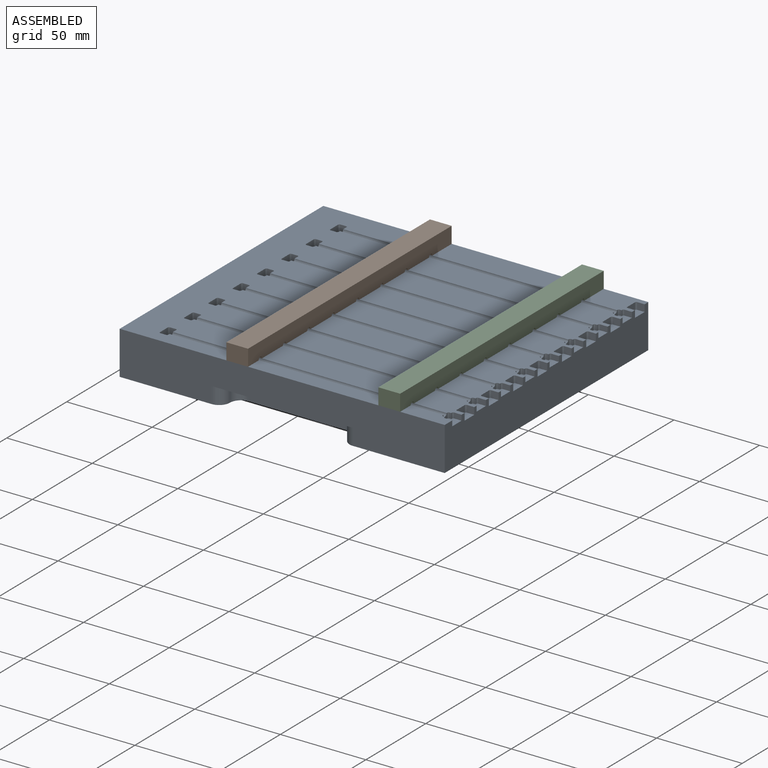
[diagram: assembled view]
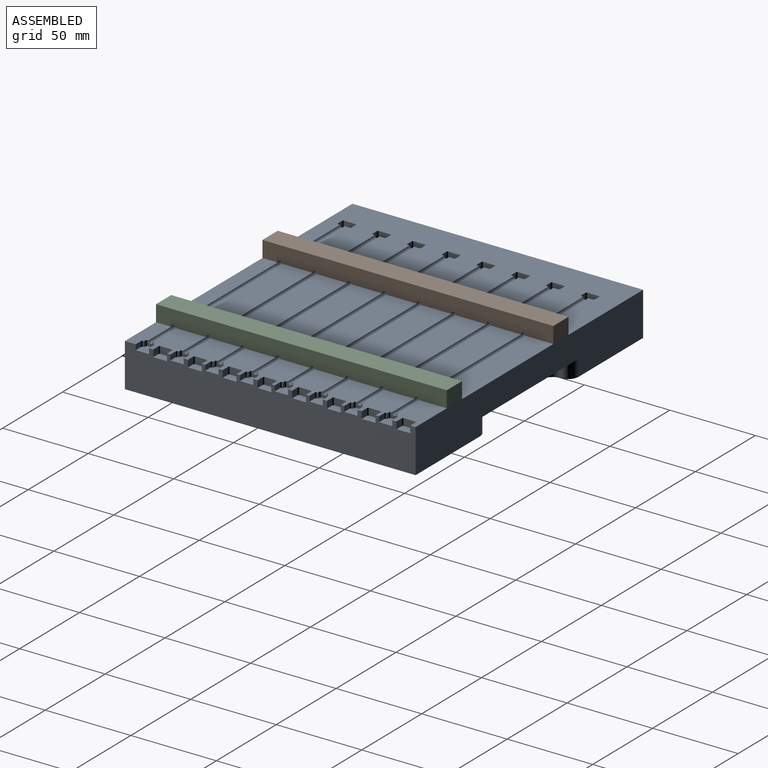
[diagram: assembled view, second angle]
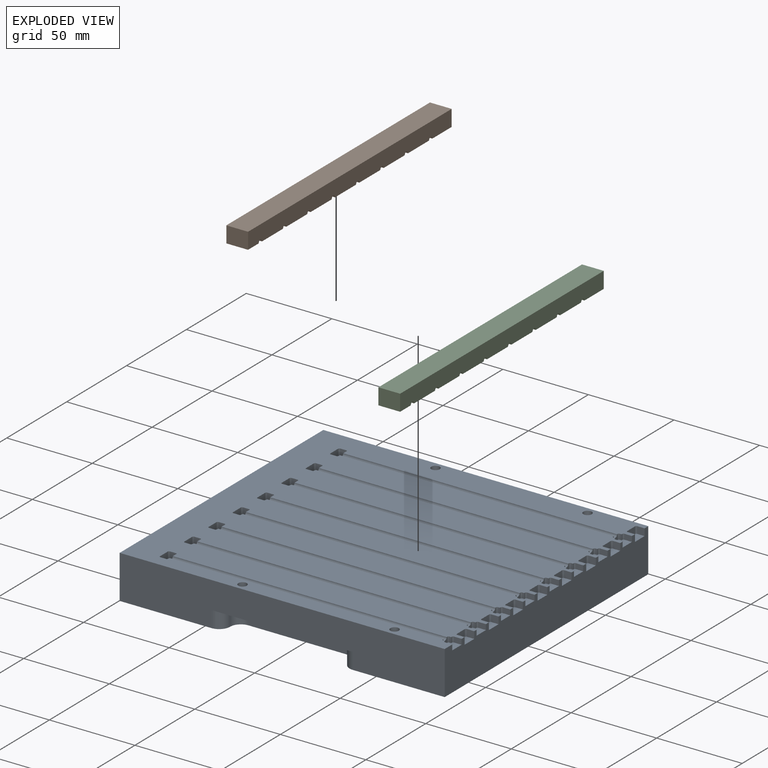
[diagram: exploded view]
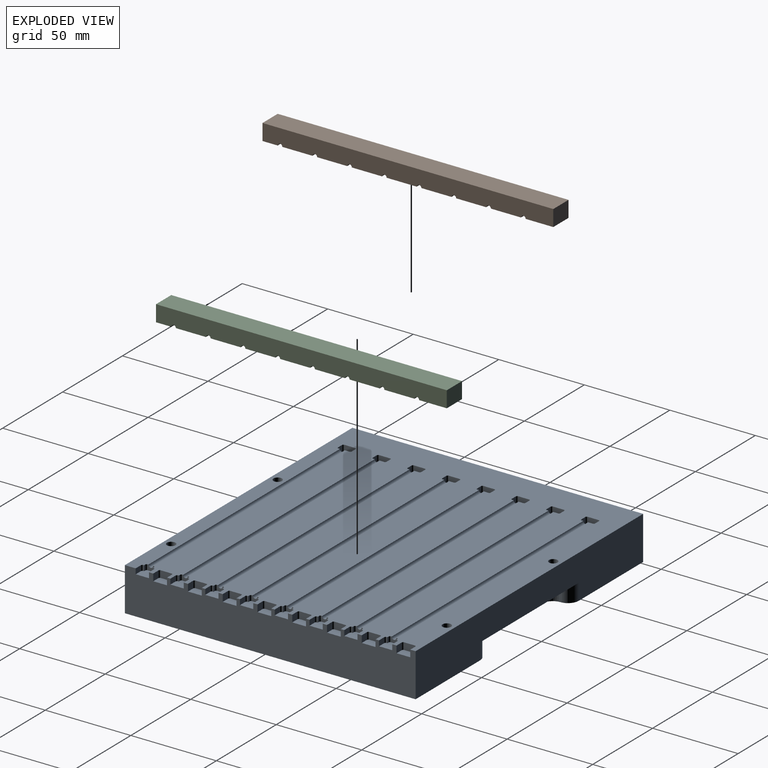
[diagram: exploded view, second angle]
ASSEMBLY  parts=3 mates=2
PART A: 258 faces, bbox 190x25.4x170 mm
  f0: plane 190x25.4mm, normal (0,0,1), area 4039.7mm2, adj f1,f2,f3,f12,f177,f180,f182
  f1: plane 190x170mm, normal (0,1,0), area 30412.7mm2, adj f0,f3,f12,f13,f150,f152,f154,f156
  f2: plane 190x170mm, normal (0,-1,0), area 27708.7mm2, adj f0,f3,f4,f5,f6,f7,f8,f9
  f3: plane 170x25.4mm, normal (1,0,0), area 3862.3mm2, adj f0,f1,f2,f13,f14,f15,f20,f26
  f4: plane 3.63x3.12mm, normal (1,0,0), area 8.4mm2, adj f2,f36,f165,f171,f172
  f5: plane 3.63x3.12mm, normal (1,0,0), area 8.4mm2, adj f2,f43,f164,f222,f225
  f6: plane 3.63x3.12mm, normal (1,0,0), area 8.4mm2, adj f2,f50,f163,f226,f229
  f7: plane 3.63x3.12mm, normal (1,0,0), area 8.4mm2, adj f2,f57,f162,f230,f233
  f8: plane 3.63x3.12mm, normal (1,0,0), area 8.4mm2, adj f2,f64,f161,f234,f237
  f9: plane 3.63x3.12mm, normal (1,0,0), area 8.4mm2, adj f2,f71,f160,f238,f241
  f10: plane 3.63x3.12mm, normal (1,0,0), area 8.4mm2, adj f2,f78,f159,f242,f245
  f11: plane 3.63x3.12mm, normal (1,0,0), area 8.4mm2, adj f2,f20,f158,f217,f218
  f12: plane 170x25.4mm, normal (-1,0,0), area 4318mm2, adj f0,f1,f2,f13
  f13: plane 190x25.4mm, normal (0,0,-1), area 4039.7mm2, adj f1,f2,f3,f12,f179,f184,f187
  f14: plane 4.38x3.12mm, normal (0,0,1), area 13.7mm2, adj f2,f3,f20,f219
  f15: plane 4.38x3.12mm, normal (0,0,-1), area 13.7mm2, adj f2,f3,f20,f216
  f16: plane 3.12x0.48mm, normal (1,0,0), area 1.5mm2, adj f2,f17,f20,f216
  f17: plane 3.12x1.04mm, normal (0,0,-1), area 3.2mm2, adj f2,f16,f20,f217
  f18: plane 3.12x1.04mm, normal (0,0,1), area 3.2mm2, adj f2,f19,f20,f218
  f19: plane 3.12x0.48mm, normal (1,0,0), area 1.5mm2, adj f2,f18,f20,f219
  f20: plane 7.76x7mm, normal (0,-1,0), area 49.1mm2, adj f3,f11,f14,f15,f16,f17,f18,f19
  f21: plane 6.46x3.81mm, normal (-1,0,0), area 21.7mm2, adj f2,f25,f158,f188,f191
  f22: plane 3.81x3.38mm, normal (0,0,-1), area 12.9mm2, adj f2,f25,f188,f189
  f23: plane 6.46x3.81mm, normal (1,0,0), area 24.6mm2, adj f2,f25,f189,f190
  f24: plane 3.81x3.38mm, normal (0,0,1), area 12.9mm2, adj f2,f25,f190,f191
  f25: plane 8.05x4.97mm, normal (0,-1,0), area 39.4mm2, adj f21,f22,f23,f24,f188,f189,f190,f191
  f26: plane 4.29x4.06mm, normal (0,0,1), area 17.4mm2, adj f2,f3,f29,f221
  f27: plane 4.29x4.06mm, normal (0,0,-1), area 17.4mm2, adj f2,f3,f29,f220
  f28: plane 6.46x4.06mm, normal (1,0,0), area 26.3mm2, adj f2,f29,f220,f221
  f29: plane 8.05x5.08mm, normal (0,-1,0), area 40.6mm2, adj f3,f26,f27,f28,f220,f221
  f30: plane 3.12x1.04mm, normal (0,0,1), area 3.2mm2, adj f2,f31,f36,f172
  f31: plane 3.12x0.48mm, normal (1,0,0), area 1.5mm2, adj f2,f30,f36,f173
  f32: plane 4.38x3.12mm, normal (0,0,1), area 13.7mm2, adj f2,f3,f36,f173
  f33: plane 4.38x3.12mm, normal (0,0,-1), area 13.7mm2, adj f2,f3,f36,f170
  f34: plane 3.12x0.48mm, normal (1,0,0), area 1.5mm2, adj f2,f35,f36,f170
  f35: plane 3.12x1.04mm, normal (0,0,-1), area 3.2mm2, adj f2,f34,f36,f171
  f36: plane 7.76x7mm, normal (0,-1,0), area 49.1mm2, adj f3,f4,f30,f31,f32,f33,f34,f35
  f37: plane 3.12x1.04mm, normal (0,0,1), area 3.2mm2, adj f2,f38,f43,f225
  f38: plane 3.12x0.48mm, normal (1,0,0), area 1.5mm2, adj f2,f37,f43,f224
  f39: plane 4.38x3.12mm, normal (0,0,1), area 13.7mm2, adj f2,f3,f43,f224
  f40: plane 4.38x3.12mm, normal (0,0,-1), area 13.7mm2, adj f2,f3,f43,f223
  f41: plane 3.12x0.48mm, normal (1,0,0), area 1.5mm2, adj f2,f42,f43,f223
  f42: plane 3.12x1.04mm, normal (0,0,-1), area 3.2mm2, adj f2,f41,f43,f222
  f43: plane 7.76x7mm, normal (0,-1,0), area 49.1mm2, adj f3,f5,f37,f38,f39,f40,f41,f42
  f44: plane 3.12x1.04mm, normal (0,0,1), area 3.2mm2, adj f2,f45,f50,f229
  f45: plane 3.12x0.48mm, normal (1,0,0), area 1.5mm2, adj f2,f44,f50,f228
  f46: plane 4.38x3.12mm, normal (0,0,1), area 13.7mm2, adj f2,f3,f50,f228
  f47: plane 4.38x3.12mm, normal (0,0,-1), area 13.7mm2, adj f2,f3,f50,f227
  f48: plane 3.12x0.48mm, normal (1,0,0), area 1.5mm2, adj f2,f49,f50,f227
  f49: plane 3.12x1.04mm, normal (0,0,-1), area 3.2mm2, adj f2,f48,f50,f226
  f50: plane 7.76x7mm, normal (0,-1,0), area 49.1mm2, adj f3,f6,f44,f45,f46,f47,f48,f49
  f51: plane 3.12x1.04mm, normal (0,0,1), area 3.2mm2, adj f2,f52,f57,f233
  f52: plane 3.12x0.48mm, normal (1,0,0), area 1.5mm2, adj f2,f51,f57,f232
  f53: plane 4.38x3.12mm, normal (0,0,1), area 13.7mm2, adj f2,f3,f57,f232
  f54: plane 4.38x3.12mm, normal (0,0,-1), area 13.7mm2, adj f2,f3,f57,f231
  f55: plane 3.12x0.48mm, normal (1,0,0), area 1.5mm2, adj f2,f56,f57,f231
  f56: plane 3.12x1.04mm, normal (0,0,-1), area 3.2mm2, adj f2,f55,f57,f230
  f57: plane 7.76x7mm, normal (0,-1,0), area 49.1mm2, adj f3,f7,f51,f52,f53,f54,f55,f56
  f58: plane 3.12x1.04mm, normal (0,0,1), area 3.2mm2, adj f2,f59,f64,f237
  f59: plane 3.12x0.48mm, normal (1,0,0), area 1.5mm2, adj f2,f58,f64,f236
  f60: plane 4.38x3.12mm, normal (0,0,1), area 13.7mm2, adj f2,f3,f64,f236
  f61: plane 4.38x3.12mm, normal (0,0,-1), area 13.7mm2, adj f2,f3,f64,f235
  f62: plane 3.12x0.48mm, normal (1,0,0), area 1.5mm2, adj f2,f63,f64,f235
  f63: plane 3.12x1.04mm, normal (0,0,-1), area 3.2mm2, adj f2,f62,f64,f234
  f64: plane 7.76x7mm, normal (0,-1,0), area 49.1mm2, adj f3,f8,f58,f59,f60,f61,f62,f63
  f65: plane 3.12x1.04mm, normal (0,0,1), area 3.2mm2, adj f2,f66,f71,f238
  f66: plane 3.12x0.48mm, normal (1,0,0), area 1.5mm2, adj f2,f65,f71,f239
  f67: plane 4.38x3.12mm, normal (0,0,1), area 13.7mm2, adj f2,f3,f71,f239
  f68: plane 4.38x3.12mm, normal (0,0,-1), area 13.7mm2, adj f2,f3,f71,f240
  f69: plane 3.12x0.48mm, normal (1,0,0), area 1.5mm2, adj f2,f70,f71,f240
  f70: plane 3.12x1.04mm, normal (0,0,-1), area 3.2mm2, adj f2,f69,f71,f241
  f71: plane 7.76x7mm, normal (0,-1,0), area 49.1mm2, adj f3,f9,f65,f66,f67,f68,f69,f70
  f72: plane 3.12x1.04mm, normal (0,0,1), area 3.2mm2, adj f2,f73,f78,f245
  f73: plane 3.12x0.48mm, normal (1,0,0), area 1.5mm2, adj f2,f72,f78,f244
  f74: plane 4.38x3.12mm, normal (0,0,1), area 13.7mm2, adj f2,f3,f78,f244
  f75: plane 4.38x3.12mm, normal (0,0,-1), area 13.7mm2, adj f2,f3,f78,f243
  f76: plane 3.12x0.48mm, normal (1,0,0), area 1.5mm2, adj f2,f77,f78,f243
  f77: plane 3.12x1.04mm, normal (0,0,-1), area 3.2mm2, adj f2,f76,f78,f242
  f78: plane 7.76x7mm, normal (0,-1,0), area 49.1mm2, adj f3,f10,f72,f73,f74,f75,f76,f77
  f79: plane 6.46x3.81mm, normal (-1,0,0), area 21.7mm2, adj f2,f83,f165,f168,f169
  f80: plane 3.81x3.38mm, normal (0,0,-1), area 12.9mm2, adj f2,f83,f166,f169
  f81: plane 6.46x3.81mm, normal (1,0,0), area 24.6mm2, adj f2,f83,f166,f167
  f82: plane 3.81x3.38mm, normal (0,0,1), area 12.9mm2, adj f2,f83,f167,f168
  f83: plane 8.05x4.97mm, normal (0,-1,0), area 39.4mm2, adj f79,f80,f81,f82,f166,f167,f168,f169
  f84: plane 6.46x3.81mm, normal (-1,0,0), area 21.7mm2, adj f2,f88,f164,f192,f195
  f85: plane 3.81x3.38mm, normal (0,0,-1), area 12.9mm2, adj f2,f88,f194,f195
  f86: plane 6.46x3.81mm, normal (1,0,0), area 24.6mm2, adj f2,f88,f193,f194
  f87: plane 3.81x3.38mm, normal (0,0,1), area 12.9mm2, adj f2,f88,f192,f193
  f88: plane 8.05x4.97mm, normal (0,-1,0), area 39.4mm2, adj f84,f85,f86,f87,f192,f193,f194,f195
  f89: plane 6.46x3.81mm, normal (-1,0,0), area 21.7mm2, adj f2,f93,f163,f196,f199
  f90: plane 3.81x3.38mm, normal (0,0,-1), area 12.9mm2, adj f2,f93,f198,f199
  f91: plane 6.46x3.81mm, normal (1,0,0), area 24.6mm2, adj f2,f93,f197,f198
  f92: plane 3.81x3.38mm, normal (0,0,1), area 12.9mm2, adj f2,f93,f196,f197
  f93: plane 8.05x4.97mm, normal (0,-1,0), area 39.4mm2, adj f89,f90,f91,f92,f196,f197,f198,f199
  f94: plane 6.46x3.81mm, normal (-1,0,0), area 21.7mm2, adj f2,f98,f162,f200,f203
  f95: plane 3.81x3.38mm, normal (0,0,-1), area 12.9mm2, adj f2,f98,f202,f203
  f96: plane 6.46x3.81mm, normal (1,0,0), area 24.6mm2, adj f2,f98,f201,f202
  f97: plane 3.81x3.38mm, normal (0,0,1), area 12.9mm2, adj f2,f98,f200,f201
  f98: plane 8.05x4.97mm, normal (0,-1,0), area 39.4mm2, adj f94,f95,f96,f97,f200,f201,f202,f203
  f99: plane 6.46x3.81mm, normal (-1,0,0), area 21.7mm2, adj f2,f103,f161,f204,f207
  f100: plane 3.81x3.38mm, normal (0,0,-1), area 12.9mm2, adj f2,f103,f206,f207
  f101: plane 6.46x3.81mm, normal (1,0,0), area 24.6mm2, adj f2,f103,f205,f206
  f102: plane 3.81x3.38mm, normal (0,0,1), area 12.9mm2, adj f2,f103,f204,f205
  f103: plane 8.05x4.97mm, normal (0,-1,0), area 39.4mm2, adj f99,f100,f101,f102,f204,f205,f206,f207
  f104: plane 6.46x3.81mm, normal (-1,0,0), area 21.7mm2, adj f2,f108,f160,f208,f211
  f105: plane 3.81x3.38mm, normal (0,0,-1), area 12.9mm2, adj f2,f108,f208,f209
  f106: plane 6.46x3.81mm, normal (1,0,0), area 24.6mm2, adj f2,f108,f209,f210
  f107: plane 3.81x3.38mm, normal (0,0,1), area 12.9mm2, adj f2,f108,f210,f211
  f108: plane 8.05x4.97mm, normal (0,-1,0), area 39.4mm2, adj f104,f105,f106,f107,f208,f209,f210,f211
  f109: plane 6.46x3.81mm, normal (-1,0,0), area 21.7mm2, adj f2,f113,f159,f212,f215
  f110: plane 3.81x3.38mm, normal (0,0,-1), area 12.9mm2, adj f2,f113,f214,f215
  f111: plane 6.46x3.81mm, normal (1,0,0), area 24.6mm2, adj f2,f113,f213,f214
  f112: plane 3.81x3.38mm, normal (0,0,1), area 12.9mm2, adj f2,f113,f212,f213
  f113: plane 8.05x4.97mm, normal (0,-1,0), area 39.4mm2, adj f109,f110,f111,f112,f212,f213,f214,f215
  f114: plane 4.29x4.06mm, normal (0,0,1), area 17.4mm2, adj f2,f3,f117,f174
  f115: plane 4.29x4.06mm, normal (0,0,-1), area 17.4mm2, adj f2,f3,f117,f175
  f116: plane 6.46x4.06mm, normal (1,0,0), area 26.3mm2, adj f2,f117,f174,f175
  f117: plane 8.05x5.08mm, normal (0,-1,0), area 40.6mm2, adj f3,f114,f115,f116,f174,f175
  f118: plane 4.29x4.06mm, normal (0,0,1), area 17.4mm2, adj f2,f3,f121,f246
  f119: plane 4.29x4.06mm, normal (0,0,-1), area 17.4mm2, adj f2,f3,f121,f247
  f120: plane 6.46x4.06mm, normal (1,0,0), area 26.3mm2, adj f2,f121,f246,f247
  f121: plane 8.05x5.08mm, normal (0,-1,0), area 40.6mm2, adj f3,f118,f119,f120,f246,f247
  f122: plane 4.29x4.06mm, normal (0,0,1), area 17.4mm2, adj f2,f3,f125,f248
  f123: plane 4.29x4.06mm, normal (0,0,-1), area 17.4mm2, adj f2,f3,f125,f249
  f124: plane 6.46x4.06mm, normal (1,0,0), area 26.3mm2, adj f2,f125,f248,f249
  f125: plane 8.05x5.08mm, normal (0,-1,0), area 40.6mm2, adj f3,f122,f123,f124,f248,f249
  f126: plane 4.29x4.06mm, normal (0,0,1), area 17.4mm2, adj f2,f3,f129,f250
  f127: plane 4.29x4.06mm, normal (0,0,-1), area 17.4mm2, adj f2,f3,f129,f251
  f128: plane 6.46x4.06mm, normal (1,0,0), area 26.3mm2, adj f2,f129,f250,f251
  f129: plane 8.05x5.08mm, normal (0,-1,0), area 40.6mm2, adj f3,f126,f127,f128,f250,f251
  f130: plane 4.29x4.06mm, normal (0,0,1), area 17.4mm2, adj f2,f3,f133,f252
  f131: plane 4.29x4.06mm, normal (0,0,-1), area 17.4mm2, adj f2,f3,f133,f253
  f132: plane 6.46x4.06mm, normal (1,0,0), area 26.3mm2, adj f2,f133,f252,f253
  f133: plane 8.05x5.08mm, normal (0,-1,0), area 40.6mm2, adj f3,f130,f131,f132,f252,f253
  f134: plane 4.29x4.06mm, normal (0,0,1), area 17.4mm2, adj f2,f3,f137,f255
  f135: plane 4.29x4.06mm, normal (0,0,-1), area 17.4mm2, adj f2,f3,f137,f254
  f136: plane 6.46x4.06mm, normal (1,0,0), area 26.3mm2, adj f2,f137,f254,f255
  f137: plane 8.05x5.08mm, normal (0,-1,0), area 40.6mm2, adj f3,f134,f135,f136,f254,f255
  f138: plane 4.29x4.06mm, normal (0,0,1), area 17.4mm2, adj f2,f3,f141,f257
  f139: plane 4.29x4.06mm, normal (0,0,-1), area 17.4mm2, adj f2,f3,f141,f256
  f140: plane 6.46x4.06mm, normal (1,0,0), area 26.3mm2, adj f2,f141,f256,f257
  f141: plane 8.05x5.08mm, normal (0,-1,0), area 40.6mm2, adj f3,f138,f139,f140,f256,f257
  f142: cylinder r=2.5mm len=6.35mm, axis (0,-1,0), area 99.7mm2, adj f2,f143
  f143: plane 5x5mm, normal (0,-1,0), area 19.6mm2, adj f142
  f144: cylinder r=2.5mm len=6.35mm, axis (0,-1,0), area 99.7mm2, adj f2,f145
  f145: plane 5x5mm, normal (0,-1,0), area 19.6mm2, adj f144
  f146: cylinder r=2.5mm len=6.35mm, axis (0,-1,0), area 99.7mm2, adj f2,f147
  f147: plane 5x5mm, normal (0,-1,0), area 19.6mm2, adj f146
  f148: cylinder r=2.5mm len=6.35mm, axis (0,-1,0), area 99.7mm2, adj f2,f149
  f149: plane 5x5mm, normal (0,-1,0), area 19.6mm2, adj f148
  f150: cylinder r=3mm len=6.35mm, axis (0,1,0), area 119.7mm2, adj f1,f151
  f151: plane 6x6mm, normal (0,1,0), area 28.3mm2, adj f150
  f152: cylinder r=3mm len=6.35mm, axis (0,1,0), area 119.7mm2, adj f1,f153
  f153: plane 6x6mm, normal (0,1,0), area 28.3mm2, adj f152
  f154: cylinder r=3mm len=6.35mm, axis (0,1,0), area 119.7mm2, adj f1,f155
  f155: plane 6x6mm, normal (0,1,0), area 28.3mm2, adj f154
  f156: cylinder r=3mm len=6.35mm, axis (0,1,0), area 119.7mm2, adj f1,f157
  f157: plane 6x6mm, normal (0,1,0), area 28.3mm2, adj f156
  f158: cylinder r=1.36mm len=160.02mm, axis (1,0,0), area 683.1mm2, adj f2,f11,f21
  f159: cylinder r=1.36mm len=160.02mm, axis (1,0,0), area 683.1mm2, adj f2,f10,f109
  f160: cylinder r=1.36mm len=160.02mm, axis (1,0,0), area 683.1mm2, adj f2,f9,f104
  f161: cylinder r=1.36mm len=160.02mm, axis (1,0,0), area 683.1mm2, adj f2,f8,f99
  f162: cylinder r=1.36mm len=160.02mm, axis (1,0,0), area 683.1mm2, adj f2,f7,f94
  f163: cylinder r=1.36mm len=160.02mm, axis (1,0,0), area 683.1mm2, adj f2,f6,f89
  f164: cylinder r=1.36mm len=160.02mm, axis (1,0,0), area 683.1mm2, adj f2,f5,f84
  f165: cylinder r=1.36mm len=160.02mm, axis (1,0,0), area 683.1mm2, adj f2,f4,f79
  f166: cylinder r=0.79mm len=3.81mm, axis (0,1,0), area 4.8mm2, adj f2,f80,f81,f83
  f167: cylinder r=0.79mm len=3.81mm, axis (0,1,0), area 4.8mm2, adj f2,f81,f82,f83
  f168: cylinder r=0.79mm len=3.81mm, axis (0,-1,0), area 4.8mm2, adj f2,f79,f82,f83
  f169: cylinder r=0.79mm len=3.81mm, axis (0,-1,0), area 4.8mm2, adj f2,f79,f80,f83
  f170: cylinder r=0.79mm len=3.12mm, axis (0,1,0), area 3.9mm2, adj f2,f33,f34,f36
  f171: cylinder r=0.79mm len=3.12mm, axis (0,1,0), area 3.9mm2, adj f2,f4,f35,f36
  f172: cylinder r=0.79mm len=3.12mm, axis (0,-1,0), area 3.9mm2, adj f2,f4,f30,f36
  f173: cylinder r=0.79mm len=3.12mm, axis (0,-1,0), area 3.9mm2, adj f2,f31,f32,f36
  f174: cylinder r=0.79mm len=4.06mm, axis (0,1,0), area 5.1mm2, adj f2,f114,f116,f117
  f175: cylinder r=0.79mm len=4.06mm, axis (0,1,0), area 5.1mm2, adj f2,f115,f116,f117
  f176: plane 57.15x9.53mm, normal (0,0,1), area 544.4mm2, adj f1,f177,f181,f183
  f177: plane 82.55x12.7mm, normal (0,1,0), area 887.1mm2, adj f0,f176,f180,f181,f182,f183
  f178: plane 57.15x9.53mm, normal (0,0,-1), area 544.4mm2, adj f1,f179,f185,f186
  f179: plane 82.55x12.7mm, normal (0,1,0), area 887.1mm2, adj f13,f178,f184,f185,f186,f187
  f180: cylinder r=6.35mm len=9.53mm, axis (0,1,0), area 95mm2, adj f0,f1,f177,f181
  f181: cylinder r=6.35mm len=9.53mm, axis (0,1,0), area 95mm2, adj f1,f176,f177,f180
  f182: cylinder r=6.35mm len=9.53mm, axis (0,-1,0), area 95mm2, adj f0,f1,f177,f183
  f183: cylinder r=6.35mm len=9.53mm, axis (0,-1,0), area 95mm2, adj f1,f176,f177,f182
  f184: cylinder r=6.35mm len=9.53mm, axis (0,-1,0), area 95mm2, adj f1,f13,f179,f185
  f185: cylinder r=6.35mm len=9.53mm, axis (0,-1,0), area 95mm2, adj f1,f178,f179,f184
  f186: cylinder r=6.35mm len=9.53mm, axis (0,1,0), area 95mm2, adj f1,f178,f179,f187
  f187: cylinder r=6.35mm len=9.53mm, axis (0,1,0), area 95mm2, adj f1,f13,f179,f186
  f188: cylinder r=0.79mm len=3.81mm, axis (0,-1,0), area 4.8mm2, adj f2,f21,f22,f25
  f189: cylinder r=0.79mm len=3.81mm, axis (0,1,0), area 4.8mm2, adj f2,f22,f23,f25
  f190: cylinder r=0.79mm len=3.81mm, axis (0,1,0), area 4.8mm2, adj f2,f23,f24,f25
  f191: cylinder r=0.79mm len=3.81mm, axis (0,-1,0), area 4.8mm2, adj f2,f21,f24,f25
  f192: cylinder r=0.79mm len=3.81mm, axis (0,-1,0), area 4.8mm2, adj f2,f84,f87,f88
  f193: cylinder r=0.79mm len=3.81mm, axis (0,1,0), area 4.8mm2, adj f2,f86,f87,f88
  f194: cylinder r=0.79mm len=3.81mm, axis (0,1,0), area 4.8mm2, adj f2,f85,f86,f88
  f195: cylinder r=0.79mm len=3.81mm, axis (0,-1,0), area 4.8mm2, adj f2,f84,f85,f88
  f196: cylinder r=0.79mm len=3.81mm, axis (0,-1,0), area 4.8mm2, adj f2,f89,f92,f93
  f197: cylinder r=0.79mm len=3.81mm, axis (0,1,0), area 4.8mm2, adj f2,f91,f92,f93
  f198: cylinder r=0.79mm len=3.81mm, axis (0,1,0), area 4.8mm2, adj f2,f90,f91,f93
  f199: cylinder r=0.79mm len=3.81mm, axis (0,-1,0), area 4.8mm2, adj f2,f89,f90,f93
  f200: cylinder r=0.79mm len=3.81mm, axis (0,-1,0), area 4.8mm2, adj f2,f94,f97,f98
  f201: cylinder r=0.79mm len=3.81mm, axis (0,1,0), area 4.8mm2, adj f2,f96,f97,f98
  f202: cylinder r=0.79mm len=3.81mm, axis (0,1,0), area 4.8mm2, adj f2,f95,f96,f98
  f203: cylinder r=0.79mm len=3.81mm, axis (0,-1,0), area 4.8mm2, adj f2,f94,f95,f98
  f204: cylinder r=0.79mm len=3.81mm, axis (0,-1,0), area 4.8mm2, adj f2,f99,f102,f103
  f205: cylinder r=0.79mm len=3.81mm, axis (0,1,0), area 4.8mm2, adj f2,f101,f102,f103
  f206: cylinder r=0.79mm len=3.81mm, axis (0,1,0), area 4.8mm2, adj f2,f100,f101,f103
  f207: cylinder r=0.79mm len=3.81mm, axis (0,-1,0), area 4.8mm2, adj f2,f99,f100,f103
  f208: cylinder r=0.79mm len=3.81mm, axis (0,-1,0), area 4.8mm2, adj f2,f104,f105,f108
  f209: cylinder r=0.79mm len=3.81mm, axis (0,1,0), area 4.8mm2, adj f2,f105,f106,f108
  f210: cylinder r=0.79mm len=3.81mm, axis (0,1,0), area 4.8mm2, adj f2,f106,f107,f108
  f211: cylinder r=0.79mm len=3.81mm, axis (0,-1,0), area 4.8mm2, adj f2,f104,f107,f108
  f212: cylinder r=0.79mm len=3.81mm, axis (0,-1,0), area 4.8mm2, adj f2,f109,f112,f113
  f213: cylinder r=0.79mm len=3.81mm, axis (0,1,0), area 4.8mm2, adj f2,f111,f112,f113
  f214: cylinder r=0.79mm len=3.81mm, axis (0,1,0), area 4.8mm2, adj f2,f110,f111,f113
  f215: cylinder r=0.79mm len=3.81mm, axis (0,-1,0), area 4.8mm2, adj f2,f109,f110,f113
  f216: cylinder r=0.79mm len=3.12mm, axis (0,1,0), area 3.9mm2, adj f2,f15,f16,f20
  f217: cylinder r=0.79mm len=3.12mm, axis (0,1,0), area 3.9mm2, adj f2,f11,f17,f20
  f218: cylinder r=0.79mm len=3.12mm, axis (0,-1,0), area 3.9mm2, adj f2,f11,f18,f20
  f219: cylinder r=0.79mm len=3.12mm, axis (0,-1,0), area 3.9mm2, adj f2,f14,f19,f20
  f220: cylinder r=0.79mm len=4.06mm, axis (0,1,0), area 5.1mm2, adj f2,f27,f28,f29
  f221: cylinder r=0.79mm len=4.06mm, axis (0,1,0), area 5.1mm2, adj f2,f26,f28,f29
  f222: cylinder r=0.79mm len=3.12mm, axis (0,1,0), area 3.9mm2, adj f2,f5,f42,f43
  f223: cylinder r=0.79mm len=3.12mm, axis (0,1,0), area 3.9mm2, adj f2,f40,f41,f43
  f224: cylinder r=0.79mm len=3.12mm, axis (0,-1,0), area 3.9mm2, adj f2,f38,f39,f43
  f225: cylinder r=0.79mm len=3.12mm, axis (0,1,0), area 3.9mm2, adj f2,f5,f37,f43
  f226: cylinder r=0.79mm len=3.12mm, axis (0,1,0), area 3.9mm2, adj f2,f6,f49,f50
  f227: cylinder r=0.79mm len=3.12mm, axis (0,1,0), area 3.9mm2, adj f2,f47,f48,f50
  f228: cylinder r=0.79mm len=3.12mm, axis (0,-1,0), area 3.9mm2, adj f2,f45,f46,f50
  f229: cylinder r=0.79mm len=3.12mm, axis (0,1,0), area 3.9mm2, adj f2,f6,f44,f50
  f230: cylinder r=0.79mm len=3.12mm, axis (0,1,0), area 3.9mm2, adj f2,f7,f56,f57
  f231: cylinder r=0.79mm len=3.12mm, axis (0,1,0), area 3.9mm2, adj f2,f54,f55,f57
  f232: cylinder r=0.79mm len=3.12mm, axis (0,-1,0), area 3.9mm2, adj f2,f52,f53,f57
  f233: cylinder r=0.79mm len=3.12mm, axis (0,-1,0), area 3.9mm2, adj f2,f7,f51,f57
  f234: cylinder r=0.79mm len=3.12mm, axis (0,1,0), area 3.9mm2, adj f2,f8,f63,f64
  f235: cylinder r=0.79mm len=3.12mm, axis (0,1,0), area 3.9mm2, adj f2,f61,f62,f64
  f236: cylinder r=0.79mm len=3.12mm, axis (0,-1,0), area 3.9mm2, adj f2,f59,f60,f64
  f237: cylinder r=0.79mm len=3.12mm, axis (0,-1,0), area 3.9mm2, adj f2,f8,f58,f64
  f238: cylinder r=0.79mm len=3.12mm, axis (0,-1,0), area 3.9mm2, adj f2,f9,f65,f71
  f239: cylinder r=0.79mm len=3.12mm, axis (0,-1,0), area 3.9mm2, adj f2,f66,f67,f71
  f240: cylinder r=0.79mm len=3.12mm, axis (0,1,0), area 3.9mm2, adj f2,f68,f69,f71
  f241: cylinder r=0.79mm len=3.12mm, axis (0,1,0), area 3.9mm2, adj f2,f9,f70,f71
  f242: cylinder r=0.79mm len=3.12mm, axis (0,1,0), area 3.9mm2, adj f2,f10,f77,f78
  f243: cylinder r=0.79mm len=3.12mm, axis (0,1,0), area 3.9mm2, adj f2,f75,f76,f78
  f244: cylinder r=0.79mm len=3.12mm, axis (0,-1,0), area 3.9mm2, adj f2,f73,f74,f78
  f245: cylinder r=0.79mm len=3.12mm, axis (0,-1,0), area 3.9mm2, adj f2,f10,f72,f78
  f246: cylinder r=0.79mm len=4.06mm, axis (0,1,0), area 5.1mm2, adj f2,f118,f120,f121
  f247: cylinder r=0.79mm len=4.06mm, axis (0,1,0), area 5.1mm2, adj f2,f119,f120,f121
  f248: cylinder r=0.79mm len=4.06mm, axis (0,1,0), area 5.1mm2, adj f2,f122,f124,f125
  f249: cylinder r=0.79mm len=4.06mm, axis (0,1,0), area 5.1mm2, adj f2,f123,f124,f125
  f250: cylinder r=0.79mm len=4.06mm, axis (0,1,0), area 5.1mm2, adj f2,f126,f128,f129
  f251: cylinder r=0.79mm len=4.06mm, axis (0,1,0), area 5.1mm2, adj f2,f127,f128,f129
  f252: cylinder r=0.79mm len=4.06mm, axis (0,1,0), area 5.1mm2, adj f2,f130,f132,f133
  f253: cylinder r=0.79mm len=4.06mm, axis (0,1,0), area 5.1mm2, adj f2,f131,f132,f133
  f254: cylinder r=0.79mm len=4.06mm, axis (0,1,0), area 5.1mm2, adj f2,f135,f136,f137
  f255: cylinder r=0.79mm len=4.06mm, axis (0,1,0), area 5.1mm2, adj f2,f134,f136,f137
  f256: cylinder r=0.79mm len=4.06mm, axis (0,1,0), area 5.1mm2, adj f2,f139,f140,f141
  f257: cylinder r=0.79mm len=4.06mm, axis (0,1,0), area 5.1mm2, adj f2,f138,f140,f141
PART B: 26 faces, bbox 12.7x9.5x170 mm
  f0: plane 17.6x12.7mm, normal (0,1,0), area 223.5mm2, adj f8,f10,f18,f19
  f1: plane 17.6x12.7mm, normal (0,1,0), area 223.5mm2, adj f8,f10,f19,f20
  f2: plane 17.6x12.7mm, normal (0,1,0), area 223.5mm2, adj f8,f10,f20,f21
  f3: plane 17.6x12.7mm, normal (0,1,0), area 223.5mm2, adj f8,f10,f23,f24
  f4: plane 17.6x12.7mm, normal (0,1,0), area 223.5mm2, adj f8,f10,f22,f23
  f5: plane 12.7x8.87mm, normal (0,1,0), area 93mm2, adj f8,f9,f10,f16,f25
  f6: plane 17.6x12.7mm, normal (0,1,0), area 223.5mm2, adj f8,f10,f21,f22
  f7: plane 17.6x12.7mm, normal (0,1,0), area 223.5mm2, adj f8,f10,f24,f25
  f8: plane 170x9.53mm, normal (1,0,0), area 1596mm2, adj f0,f1,f2,f3,f4,f5,f6,f7
  f9: plane 12.7x9.53mm, normal (0,0,1), area 121mm2, adj f5,f8,f10,f12
  f10: plane 170x9.53mm, normal (-1,0,0), area 1596mm2, adj f0,f1,f2,f3,f4,f5,f6,f7
  f11: plane 12.7x9.53mm, normal (0,0,-1), area 121mm2, adj f8,f10,f12,f13
  f12: plane 170x12.7mm, normal (0,-1,0), area 2159mm2, adj f8,f9,f10,f11
  f13: plane 16.17x12.7mm, normal (0,1,0), area 185.7mm2, adj f8,f10,f11,f14,f18
  f14: cylinder r=2.5mm len=6.35mm, axis (0,1,0), area 99.7mm2, adj f13,f15
  f15: plane 5x5mm, normal (0,1,0), area 19.6mm2, adj f14
  f16: cylinder r=2.5mm len=6.35mm, axis (0,1,0), area 99.7mm2, adj f5,f17
  f17: plane 5x5mm, normal (0,1,0), area 19.6mm2, adj f16
  f18: cylinder r=1.36mm len=12.7mm, axis (1,0,0), area 54.2mm2, adj f0,f8,f10,f13
  f19: cylinder r=1.36mm len=12.7mm, axis (1,0,0), area 54.2mm2, adj f0,f1,f8,f10
  f20: cylinder r=1.36mm len=12.7mm, axis (1,0,0), area 54.2mm2, adj f1,f2,f8,f10
  f21: cylinder r=1.36mm len=12.7mm, axis (1,0,0), area 54.2mm2, adj f2,f6,f8,f10
  f22: cylinder r=1.36mm len=12.7mm, axis (1,0,0), area 54.2mm2, adj f4,f6,f8,f10
  f23: cylinder r=1.36mm len=12.7mm, axis (1,0,0), area 54.2mm2, adj f3,f4,f8,f10
  f24: cylinder r=1.36mm len=12.7mm, axis (1,0,0), area 54.2mm2, adj f3,f7,f8,f10
  f25: cylinder r=1.36mm len=12.7mm, axis (1,0,0), area 54.2mm2, adj f5,f7,f8,f10
PART C: same geometry as B
PLACE A rot(axis=(-1,0,0),90deg) t=(-5.01,-42.02,36.26)mm
PLACE B rot(axis=(0,-0.71,0.71),180deg) t=(-26.3,-42.02,61.66)mm
PLACE C rot(axis=(0,-0.71,0.71),180deg) t=(62.6,-42.02,61.66)mm
MATE pin_slot C.f16 <-> A.f148  axis (0,0,-1) through (62.6,-122.57,61.66)mm
MATE pin_slot B.f16 <-> A.f142  axis (0,0,-1) through (-26.3,-122.57,61.66)mm
